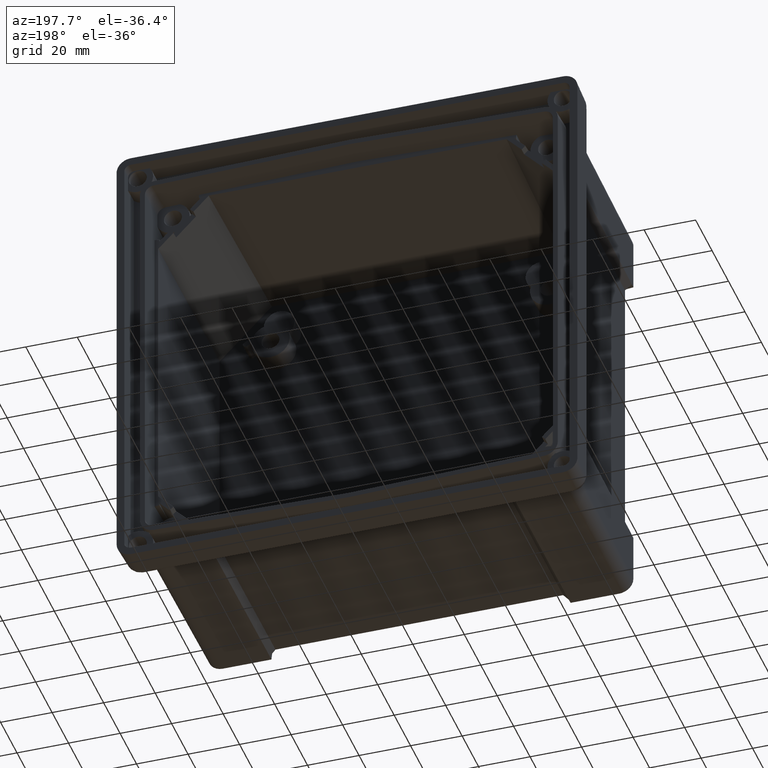
[diagram: clean part render]
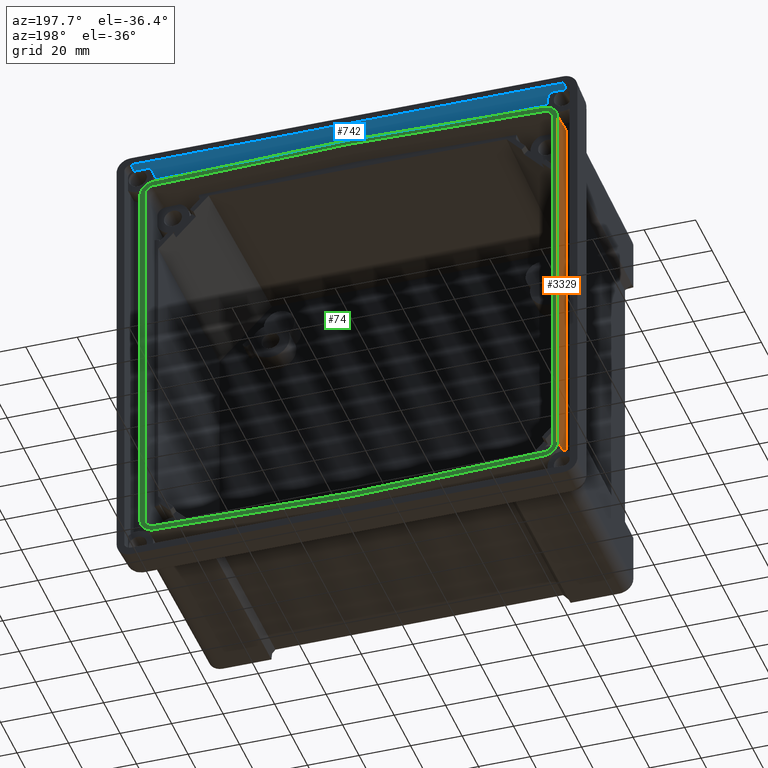
[diagram: same view with three faces highlighted in distinct colors, each labeled with its STEP entity id]
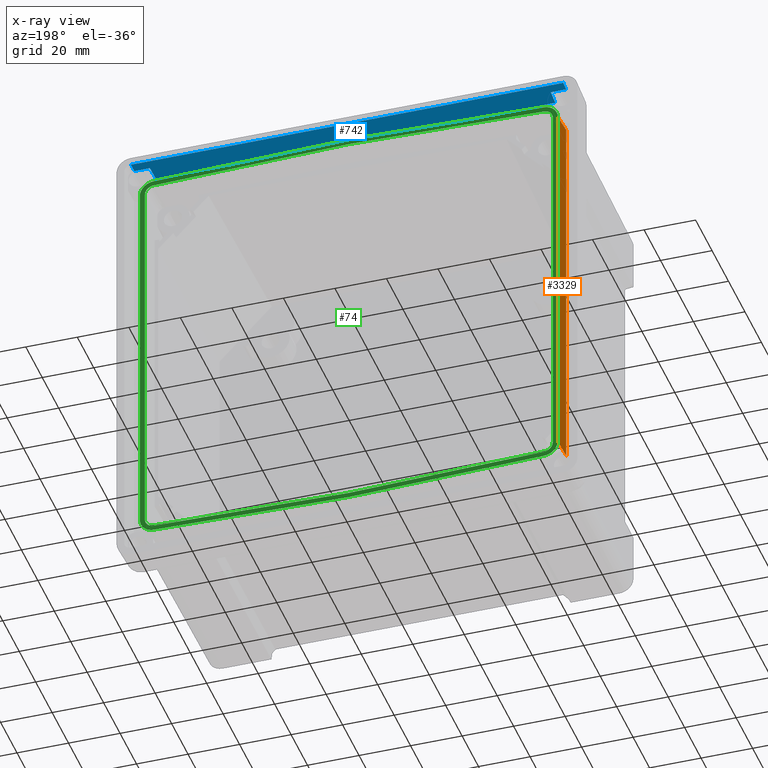
[diagram: x-ray of the same camera — body ghosted, the three highlighted faces saturated]
A machine part, auxiliary view with three faces highlighted in distinct colors.
The next image is the same camera in x-ray (body ghosted, the three faces saturated) — at least one of them is partly hidden behind the body in this view.
Their STEP definitions:

[orange] entity #3329 — the highlighted planar face has unit normal (-0.9994, 0.0349, -0).
#242 = DIRECTION ( 'NONE',  ( 8.896017825522089300E-017, 0.0000000000000000000, -1.000000000000000000 ) ) ;
#440 = LINE ( 'NONE', #12625, #4197 ) ;
#571 = ORIENTED_EDGE ( 'NONE', *, *, #1816, .T. ) ;
#993 = DIRECTION ( 'NONE',  ( -8.830472419256287500E-017, 1.876974855359052400E-017, 1.000000000000000000 ) ) ;
#1524 = EDGE_CURVE ( 'NONE', #4217, #10422, #3772, .T. ) ;
#1570 = DIRECTION ( 'NONE',  ( 0.03487934512674303900, 0.9988137613916394700, -0.03397795370846534700 ) ) ;
#1625 = CARTESIAN_POINT ( 'NONE',  ( -81.10051121326883100, -2.200000000000000200, 82.14410265747622500 ) ) ;
#1816 = EDGE_CURVE ( 'NONE', #2580, #2204, #3033, .T. ) ;
#2204 = VERTEX_POINT ( 'NONE', #4997 ) ;
#2372 = CARTESIAN_POINT ( 'NONE',  ( -81.42553552676963600, -11.50747856451472600, 82.14410265747622500 ) ) ;
#2580 = VERTEX_POINT ( 'NONE', #4903 ) ;
#2984 = CARTESIAN_POINT ( 'NONE',  ( -81.13739601074755100, -3.256242402889716100, 74.60243174988704600 ) ) ;
#3033 = LINE ( 'NONE', #1625, #8103 ) ;
#3288 = FACE_OUTER_BOUND ( 'NONE', #9662, .T. ) ;
#3329 = ADVANCED_FACE ( 'NONE', ( #3288 ), #12629, .T. ) ;
#3772 = LINE ( 'NONE', #2372, #7730 ) ;
#4197 = VECTOR ( 'NONE', #11251, 1000.000000000000100 ) ;
#4217 = VERTEX_POINT ( 'NONE', #6468 ) ;
#4339 = AXIS2_PLACEMENT_3D ( 'NONE', #11254, #9855, #8469 ) ;
#4359 = LINE ( 'NONE', #2984, #7988 ) ;
#4903 = CARTESIAN_POINT ( 'NONE',  ( -81.10051121326883100, -2.200000000000000200, 74.56650017099060800 ) ) ;
#4997 = CARTESIAN_POINT ( 'NONE',  ( -81.10051121326881700, -2.200000000000000200, -74.56650017099055100 ) ) ;
#5450 = EDGE_CURVE ( 'NONE', #2204, #4217, #440, .T. ) ;
#6468 = CARTESIAN_POINT ( 'NONE',  ( -81.42553552676962200, -11.50747856451472700, -74.88312483920401500 ) ) ;
#7232 = EDGE_CURVE ( 'NONE', #10422, #2580, #4359, .T. ) ;
#7568 = ORIENTED_EDGE ( 'NONE', *, *, #5450, .T. ) ;
#7730 = VECTOR ( 'NONE', #993, 1000.000000000000000 ) ;
#7988 = VECTOR ( 'NONE', #1570, 1000.000000000000100 ) ;
#8103 = VECTOR ( 'NONE', #242, 1000.000000000000000 ) ;
#8469 = DIRECTION ( 'NONE',  ( -0.03489949670250104600, -0.9993908270190956500, 0.0000000000000000000 ) ) ;
#9662 = EDGE_LOOP ( 'NONE', ( #571, #7568, #11582, #11304 ) ) ;
#9855 = DIRECTION ( 'NONE',  ( -0.9993908270190957600, 0.03489949670250105200, -8.890598611825138600E-017 ) ) ;
#10422 = VERTEX_POINT ( 'NONE', #11853 ) ;
#11251 = DIRECTION ( 'NONE',  ( -0.03487934512674303900, -0.9988137613916394700, -0.03397795370846535400 ) ) ;
#11254 = CARTESIAN_POINT ( 'NONE',  ( -81.12844782886223500, -3.000000000000000000, 82.14410265747622500 ) ) ;
#11304 = ORIENTED_EDGE ( 'NONE', *, *, #7232, .T. ) ;
#11582 = ORIENTED_EDGE ( 'NONE', *, *, #1524, .T. ) ;
#11853 = CARTESIAN_POINT ( 'NONE',  ( -81.42553552676963600, -11.50747856451472600, 74.88312483920400100 ) ) ;
#12625 = CARTESIAN_POINT ( 'NONE',  ( -80.94269333138386500, 2.319312838230924300, -74.41276079699811400 ) ) ;
#12629 = PLANE ( 'NONE',  #4339 ) ;

[blue] entity #742 — the highlighted planar face has unit normal (0, -0.0349, 0.9994).
#10 = VECTOR ( 'NONE', #6622, 1000.000000000000000 ) ;
#122 = EDGE_LOOP ( 'NONE', ( #4899, #6004, #10915, #4520, #3352, #6999, #4445, #3478 ) ) ;
#394 = EDGE_CURVE ( 'NONE', #11939, #8159, #5866, .T. ) ;
#742 = ADVANCED_FACE ( 'NONE', ( #11915 ), #13426, .F. ) ;
#762 = CARTESIAN_POINT ( 'NONE',  ( -77.52785847013065300, -10.52288663728130500, 87.55767635318143500 ) ) ;
#829 = VECTOR ( 'NONE', #2116, 1000.000000000000000 ) ;
#872 = DIRECTION ( 'NONE',  ( 1.000000000000000000, -0.0000000000000000000, -0.0000000000000000000 ) ) ;
#1884 = EDGE_CURVE ( 'NONE', #7012, #8159, #4900, .T. ) ;
#2116 = DIRECTION ( 'NONE',  ( 1.000000000000000000, 0.0000000000000000000, 0.0000000000000000000 ) ) ;
#2249 = CARTESIAN_POINT ( 'NONE',  ( -89.42697228472621900, -4.000000000000000000, 87.78546057386273600 ) ) ;
#2316 = CARTESIAN_POINT ( 'NONE',  ( -77.52785847013065300, -10.52288663728130500, 87.55767635318143500 ) ) ;
#2332 = LINE ( 'NONE', #7573, #11004 ) ;
#2592 = VECTOR ( 'NONE', #872, 1000.000000000000000 ) ;
#2594 = VERTEX_POINT ( 'NONE', #8096 ) ;
#2943 = VECTOR ( 'NONE', #7417, 1000.000000000000100 ) ;
#3232 = CARTESIAN_POINT ( 'NONE',  ( -83.92666658428200300, 0.0000000000000000000, 87.92514365182970000 ) ) ;
#3303 = EDGE_CURVE ( 'NONE', #10736, #11427, #10201, .T. ) ;
#3352 = ORIENTED_EDGE ( 'NONE', *, *, #8765, .F. ) ;
#3478 = ORIENTED_EDGE ( 'NONE', *, *, #7141, .T. ) ;
#3503 = CARTESIAN_POINT ( 'NONE',  ( -89.42697228472621900, -10.52288663728130500, 87.55767635318143500 ) ) ;
#3651 = LINE ( 'NONE', #2249, #2592 ) ;
#3688 = CARTESIAN_POINT ( 'NONE',  ( 77.84486431521797600, -4.000000000000001800, 87.78546057386273600 ) ) ;
#4320 = DIRECTION ( 'NONE',  ( 1.000000000000000000, -0.0000000000000000000, -0.0000000000000000000 ) ) ;
#4445 = ORIENTED_EDGE ( 'NONE', *, *, #1884, .F. ) ;
#4520 = ORIENTED_EDGE ( 'NONE', *, *, #3303, .F. ) ;
#4653 = AXIS2_PLACEMENT_3D ( 'NONE', #13087, #11688, #10326 ) ;
#4678 = CARTESIAN_POINT ( 'NONE',  ( 77.66854690946770700, -10.52288663728130500, 87.55767635318143500 ) ) ;
#4899 = ORIENTED_EDGE ( 'NONE', *, *, #8221, .F. ) ;
#4900 = LINE ( 'NONE', #3503, #829 ) ;
#5705 = CARTESIAN_POINT ( 'NONE',  ( -89.42697228472621900, -4.000000000000000000, 87.78546057386273600 ) ) ;
#5866 =( BOUNDED_CURVE ( )  B_SPLINE_CURVE ( 3, ( #8851, #7468, #6084, #4678 ),
 .UNSPECIFIED., .F., .F. ) 
 B_SPLINE_CURVE_WITH_KNOTS ( ( 4, 4 ),
 ( 0.8880706524711692300, 0.9360837931004155600 ),
 .UNSPECIFIED. ) 
 CURVE ( )  GEOMETRIC_REPRESENTATION_ITEM ( )  RATIONAL_B_SPLINE_CURVE ( ( 1.000000000000000000, 0.9998079040864952200, 0.9998079040864952200, 1.000000000000000000 ) ) 
 REPRESENTATION_ITEM ( '' )  );
#6004 = ORIENTED_EDGE ( 'NONE', *, *, #8872, .F. ) ;
#6084 = CARTESIAN_POINT ( 'NONE',  ( 77.72549078425041100, -8.308392469827444100, 87.63500819354389600 ) ) ;
#6199 = DIRECTION ( 'NONE',  ( 0.03487826274237469700, -0.9987827659587182900, -0.03487826274237469700 ) ) ;
#6622 = DIRECTION ( 'NONE',  ( -1.000000000000000000, -0.0000000000000000000, -0.0000000000000000000 ) ) ;
#6999 = ORIENTED_EDGE ( 'NONE', *, *, #394, .T. ) ;
#7012 = VERTEX_POINT ( 'NONE', #2316 ) ;
#7111 = LINE ( 'NONE', #5705, #8435 ) ;
#7141 = EDGE_CURVE ( 'NONE', #7012, #2594, #12546, .T. ) ;
#7417 = DIRECTION ( 'NONE',  ( 0.03487826274237469700, 0.9987827659587182900, 0.03487826274237469700 ) ) ;
#7468 = CARTESIAN_POINT ( 'NONE',  ( 77.78427454495404400, -6.133679170529106300, 87.71095085537936600 ) ) ;
#7573 = CARTESIAN_POINT ( 'NONE',  ( -83.71578528385467200, -6.038850331667778600, 87.71426235140236800 ) ) ;
#8009 = CARTESIAN_POINT ( 'NONE',  ( -89.42697228472621900, 0.0000000000000000000, 87.92514365182971400 ) ) ;
#8096 = CARTESIAN_POINT ( 'NONE',  ( -77.84486431521797600, -4.000000000000001800, 87.78546057386273600 ) ) ;
#8159 = VERTEX_POINT ( 'NONE', #8737 ) ;
#8221 = EDGE_CURVE ( 'NONE', #10423, #2594, #7111, .T. ) ;
#8435 = VECTOR ( 'NONE', #4320, 1000.000000000000000 ) ;
#8737 = CARTESIAN_POINT ( 'NONE',  ( 77.66854690946770700, -10.52288663728130500, 87.55767635318143500 ) ) ;
#8765 = EDGE_CURVE ( 'NONE', #11939, #10736, #3651, .T. ) ;
#8797 = CARTESIAN_POINT ( 'NONE',  ( 83.71943476349044000, -5.934342908466788000, 87.71791183103816500 ) ) ;
#8851 = CARTESIAN_POINT ( 'NONE',  ( 77.84486431521797600, -4.000000000000001800, 87.78546057386273600 ) ) ;
#8872 = EDGE_CURVE ( 'NONE', #10971, #10423, #2332, .T. ) ;
#9412 = CARTESIAN_POINT ( 'NONE',  ( 83.78698350631501100, -4.000000000000000000, 87.78546057386273600 ) ) ;
#10183 = CARTESIAN_POINT ( 'NONE',  ( -77.84486431521797600, -4.000000000000001800, 87.78546057386273600 ) ) ;
#10201 = LINE ( 'NONE', #8797, #2943 ) ;
#10326 = DIRECTION ( 'NONE',  ( 0.0000000000000000000, -0.9993908270190956500, -0.03489949670250104600 ) ) ;
#10339 = CARTESIAN_POINT ( 'NONE',  ( 83.92666658428200300, 0.0000000000000000000, 87.92514365182972800 ) ) ;
#10423 = VERTEX_POINT ( 'NONE', #10481 ) ;
#10481 = CARTESIAN_POINT ( 'NONE',  ( -83.78698350631502500, -4.000000000000000000, 87.78546057386272100 ) ) ;
#10736 = VERTEX_POINT ( 'NONE', #9412 ) ;
#10747 = EDGE_CURVE ( 'NONE', #11427, #10971, #10785, .T. ) ;
#10785 = LINE ( 'NONE', #8009, #10 ) ;
#10915 = ORIENTED_EDGE ( 'NONE', *, *, #10747, .F. ) ;
#10971 = VERTEX_POINT ( 'NONE', #3232 ) ;
#11004 = VECTOR ( 'NONE', #6199, 1000.000000000000100 ) ;
#11427 = VERTEX_POINT ( 'NONE', #10339 ) ;
#11557 = CARTESIAN_POINT ( 'NONE',  ( -77.73785555488125000, -6.102553456151002600, 87.71203778927639400 ) ) ;
#11688 = DIRECTION ( 'NONE',  ( 0.0000000000000000000, -0.03489949670250105200, 0.9993908270190957600 ) ) ;
#11915 = FACE_OUTER_BOUND ( 'NONE', #122, .T. ) ;
#11939 = VERTEX_POINT ( 'NONE', #3688 ) ;
#12546 =( BOUNDED_CURVE ( )  B_SPLINE_CURVE ( 3, ( #762, #12942, #11557, #10183 ),
 .UNSPECIFIED., .F., .F. ) 
 B_SPLINE_CURVE_WITH_KNOTS ( ( 4, 4 ),
 ( 2.564415316060180600, 2.605394574925203900 ),
 .UNSPECIFIED. ) 
 CURVE ( )  GEOMETRIC_REPRESENTATION_ITEM ( )  RATIONAL_B_SPLINE_CURVE ( ( 1.000000000000000000, 0.9998600632577530100, 0.9998600632577530100, 1.000000000000000000 ) ) 
 REPRESENTATION_ITEM ( '' )  );
#12942 = CARTESIAN_POINT ( 'NONE',  ( -77.63217215086085300, -8.277153308330316200, 87.63609908910166300 ) ) ;
#13087 = CARTESIAN_POINT ( 'NONE',  ( -89.42697228472621900, 0.1046984901075031500, 87.92879980366889500 ) ) ;
#13426 = PLANE ( 'NONE',  #4653 ) ;

[green] entity #74 — the highlighted planar face has unit normal (0, 1, 0).
#74 = ADVANCED_FACE ( 'NONE', ( #10779, #3683 ), #7956, .T. ) ;
#242 = DIRECTION ( 'NONE',  ( 8.896017825522089300E-017, 0.0000000000000000000, -1.000000000000000000 ) ) ;
#270 = EDGE_CURVE ( 'NONE', #11972, #3556, #4939, .T. ) ;
#288 = VERTEX_POINT ( 'NONE', #756 ) ;
#509 = CARTESIAN_POINT ( 'NONE',  ( 0.0007312953422992004600, -2.200000000000000200, -80.09997837115109600 ) ) ;
#608 = CARTESIAN_POINT ( 'NONE',  ( -1.030584521700440600E-012, -2.200000000000000200, -82.04479072166439800 ) ) ;
#722 = ORIENTED_EDGE ( 'NONE', *, *, #8085, .T. ) ;
#756 = CARTESIAN_POINT ( 'NONE',  ( -75.74774717576413300, -2.200000000000000200, 80.06126615507719200 ) ) ;
#879 = CARTESIAN_POINT ( 'NONE',  ( 79.15638444445563900, -2.200000000000000200, 78.00000000000002800 ) ) ;
#934 = CARTESIAN_POINT ( 'NONE',  ( -79.15638444445562500, -2.200000000000000200, -74.61974260296199200 ) ) ;
#957 = CARTESIAN_POINT ( 'NONE',  ( 79.15638444445563900, -2.200000000000000200, 74.61974260296200600 ) ) ;
#1006 = CARTESIAN_POINT ( 'NONE',  ( 0.0007312953422795793200, -2.200000000000000200, 80.09997837115109600 ) ) ;
#1101 = CARTESIAN_POINT ( 'NONE',  ( -79.07162764246172100, -2.200000000000000200, 79.97422728187089500 ) ) ;
#1168 = EDGE_LOOP ( 'NONE', ( #2226, #13218, #7873, #1909, #4895, #1324, #722, #8537, #7736, #11148 ) ) ;
#1324 = ORIENTED_EDGE ( 'NONE', *, *, #11343, .F. ) ;
#1326 = LINE ( 'NONE', #1006, #3938 ) ;
#1625 = CARTESIAN_POINT ( 'NONE',  ( -81.10051121326883100, -2.200000000000000200, 82.14410265747622500 ) ) ;
#1695 = VECTOR ( 'NONE', #2279, 1000.000000000000100 ) ;
#1738 = CARTESIAN_POINT ( 'NONE',  ( 75.75008005695265500, -2.200000000000000200, 78.11641186556258300 ) ) ;
#1772 = CARTESIAN_POINT ( 'NONE',  ( 75.75008005695265500, -2.200000000000000200, 78.11641186556258300 ) ) ;
#1816 = EDGE_CURVE ( 'NONE', #2580, #2204, #3033, .T. ) ;
#1909 = ORIENTED_EDGE ( 'NONE', *, *, #2484, .T. ) ;
#2095 = CARTESIAN_POINT ( 'NONE',  ( -75.75008005695264000, -2.200000000000000200, -78.11641186556256900 ) ) ;
#2146 = DIRECTION ( 'NONE',  ( 0.9996573249755572600, 0.0000000000000000000, -0.02617694830787347500 ) ) ;
#2168 =( BOUNDED_CURVE ( )  B_SPLINE_CURVE ( 3, ( #13498, #12095, #10704, #9330 ),
 .UNSPECIFIED., .F., .F. ) 
 B_SPLINE_CURVE_WITH_KNOTS ( ( 4, 4 ),
 ( 5.511470371821729100, 7.054900242537439000 ),
 .UNSPECIFIED. ) 
 CURVE ( )  GEOMETRIC_REPRESENTATION_ITEM ( )  RATIONAL_B_SPLINE_CURVE ( ( 1.000000000000000000, 0.8111438583819922100, 0.8111438583819922100, 1.000000000000000000 ) ) 
 REPRESENTATION_ITEM ( '' )  );
#2204 = VERTEX_POINT ( 'NONE', #4997 ) ;
#2226 = ORIENTED_EDGE ( 'NONE', *, *, #270, .F. ) ;
#2258 = LINE ( 'NONE', #879, #8352 ) ;
#2279 = DIRECTION ( 'NONE',  ( 0.9996573249755572600, -0.0000000000000000000, 0.02617694830787365200 ) ) ;
#2484 = EDGE_CURVE ( 'NONE', #2580, #288, #9489, .T. ) ;
#2487 = LINE ( 'NONE', #1101, #7879 ) ;
#2500 = VECTOR ( 'NONE', #3291, 1000.000000000000100 ) ;
#2580 = VERTEX_POINT ( 'NONE', #4903 ) ;
#2714 = CARTESIAN_POINT ( 'NONE',  ( -79.15638444445563900, -2.200000000000000200, 74.61974260296194900 ) ) ;
#2836 = EDGE_CURVE ( 'NONE', #10615, #6603, #6428, .T. ) ;
#2996 = DIRECTION ( 'NONE',  ( 8.896017825522089300E-017, -0.0000000000000000000, -1.000000000000000000 ) ) ;
#3008 = VERTEX_POINT ( 'NONE', #957 ) ;
#3033 = LINE ( 'NONE', #1625, #8103 ) ;
#3165 = CARTESIAN_POINT ( 'NONE',  ( 77.75658984069792700, -2.200000000000000200, 78.06386955773760400 ) ) ;
#3291 = DIRECTION ( 'NONE',  ( -0.9996573249755572600, 0.0000000000000000000, -0.02617694830787382600 ) ) ;
#3294 = DIRECTION ( 'NONE',  ( -0.9996573249755572600, 0.0000000000000000000, 0.02617694830787330500 ) ) ;
#3442 = CARTESIAN_POINT ( 'NONE',  ( 79.15638444445565400, -2.200000000000000200, -74.61974260296193500 ) ) ;
#3476 = CARTESIAN_POINT ( 'NONE',  ( -77.75658984069789900, -2.200000000000000200, -78.06386955773760400 ) ) ;
#3540 = CARTESIAN_POINT ( 'NONE',  ( -83.37071780475932300, -2.200000000000000200, -79.86165164406215000 ) ) ;
#3556 = VERTEX_POINT ( 'NONE', #608 ) ;
#3650 = VERTEX_POINT ( 'NONE', #12544 ) ;
#3677 = CARTESIAN_POINT ( 'NONE',  ( -74.77773506529111100, -2.200000000000000200, -84.00291462720557000 ) ) ;
#3683 = FACE_OUTER_BOUND ( 'NONE', #1168, .T. ) ;
#3795 = DIRECTION ( 'NONE',  ( 0.0000000000000000000, -0.0000000000000000000, 1.000000000000000000 ) ) ;
#3906 = EDGE_CURVE ( 'NONE', #7478, #7981, #6083, .T. ) ;
#3938 = VECTOR ( 'NONE', #13185, 1000.000000000000100 ) ;
#4125 = CARTESIAN_POINT ( 'NONE',  ( -79.15638444445565400, -2.200000000000000600, 76.62694020319395300 ) ) ;
#4298 = CARTESIAN_POINT ( 'NONE',  ( -81.10051121326881700, -2.200000000000000200, -74.56650017099055100 ) ) ;
#4372 = CARTESIAN_POINT ( 'NONE',  ( -79.15638444445562500, -2.200000000000000200, -78.00000000000001400 ) ) ;
#4464 = CARTESIAN_POINT ( 'NONE',  ( -75.75008005695264000, -2.200000000000000200, -78.11641186556256900 ) ) ;
#4543 = CARTESIAN_POINT ( 'NONE',  ( 79.15638444445563900, -2.200000000000000200, 76.62694020319399600 ) ) ;
#4677 = CARTESIAN_POINT ( 'NONE',  ( -79.12917912420451200, -2.200000000000000200, 78.02792704241295500 ) ) ;
#4680 = CARTESIAN_POINT ( 'NONE',  ( -79.07682522758875600, -2.200000000000000200, 84.11549026501435800 ) ) ;
#4754 = DIRECTION ( 'NONE',  ( 0.9996573249755572600, -0.0000000000000000000, -0.02617694830787347500 ) ) ;
#4837 = CARTESIAN_POINT ( 'NONE',  ( 79.15638444445566800, -2.200000000000000600, -76.62694020319393900 ) ) ;
#4873 = CARTESIAN_POINT ( 'NONE',  ( -79.15638444445559700, -2.200000000000000200, -76.62694020319398200 ) ) ;
#4895 = ORIENTED_EDGE ( 'NONE', *, *, #6165, .F. ) ;
#4903 = CARTESIAN_POINT ( 'NONE',  ( -81.10051121326883100, -2.200000000000000200, 74.56650017099060800 ) ) ;
#4939 = LINE ( 'NONE', #3540, #12093 ) ;
#4997 = CARTESIAN_POINT ( 'NONE',  ( -81.10051121326881700, -2.200000000000000200, -74.56650017099055100 ) ) ;
#5051 = CARTESIAN_POINT ( 'NONE',  ( 75.74774717576413300, -2.200000000000000200, -80.06126615507717800 ) ) ;
#5079 = LINE ( 'NONE', #3677, #1695 ) ;
#5104 =( BOUNDED_CURVE ( )  B_SPLINE_CURVE ( 3, ( #8470, #7088, #5685, #4298 ),
 .UNSPECIFIED., .F., .F. ) 
 B_SPLINE_CURVE_WITH_KNOTS ( ( 4, 4 ),
 ( 5.511470371821733500, 7.054900242537451400 ),
 .UNSPECIFIED. ) 
 CURVE ( )  GEOMETRIC_REPRESENTATION_ITEM ( )  RATIONAL_B_SPLINE_CURVE ( ( 1.000000000000000000, 0.8111438583819904300, 0.8111438583819904300, 1.000000000000000000 ) ) 
 REPRESENTATION_ITEM ( '' )  );
#5191 = DIRECTION ( 'NONE',  ( 0.0000000000000000000, 1.000000000000000000, 0.0000000000000000000 ) ) ;
#5208 = EDGE_CURVE ( 'NONE', #11107, #8890, #6749, .T. ) ;
#5497 = CARTESIAN_POINT ( 'NONE',  ( -77.75658984069792700, -2.200000000000000600, 78.06386955773757600 ) ) ;
#5498 =( BOUNDED_CURVE ( )  B_SPLINE_CURVE ( 3, ( #6895, #5497, #4125, #2714 ),
 .UNSPECIFIED., .F., .F. ) 
 B_SPLINE_CURVE_WITH_KNOTS ( ( 4, 4 ),
 ( 5.511470371821736200, 7.054900242537443400 ),
 .UNSPECIFIED. ) 
 CURVE ( )  GEOMETRIC_REPRESENTATION_ITEM ( )  RATIONAL_B_SPLINE_CURVE ( ( 1.000000000000000000, 0.8111438583819927700, 0.8111438583819927700, 1.000000000000000000 ) ) 
 REPRESENTATION_ITEM ( '' )  );
#5513 = ORIENTED_EDGE ( 'NONE', *, *, #10350, .T. ) ;
#5578 = EDGE_CURVE ( 'NONE', #10582, #11107, #5760, .T. ) ;
#5685 = CARTESIAN_POINT ( 'NONE',  ( -81.10051121326890200, -2.200000000000000200, -77.72066782849799400 ) ) ;
#5760 = LINE ( 'NONE', #4372, #11540 ) ;
#5941 = CARTESIAN_POINT ( 'NONE',  ( 79.15638444445563900, -2.200000000000000200, 74.61974260296200600 ) ) ;
#5953 = CARTESIAN_POINT ( 'NONE',  ( 75.74774717576413300, -2.200000000000000200, -80.06126615507717800 ) ) ;
#6083 = LINE ( 'NONE', #4677, #2500 ) ;
#6085 = LINE ( 'NONE', #4680, #9719 ) ;
#6160 = CARTESIAN_POINT ( 'NONE',  ( -79.12917912420449800, -2.200000000000000200, -78.02792704241298300 ) ) ;
#6165 = EDGE_CURVE ( 'NONE', #11496, #288, #2487, .T. ) ;
#6171 = VERTEX_POINT ( 'NONE', #7722 ) ;
#6242 = CARTESIAN_POINT ( 'NONE',  ( 77.75658984069794100, -2.200000000000000600, -78.06386955773756100 ) ) ;
#6244 = ORIENTED_EDGE ( 'NONE', *, *, #6806, .T. ) ;
#6245 = VECTOR ( 'NONE', #12691, 1000.000000000000100 ) ;
#6276 = CARTESIAN_POINT ( 'NONE',  ( -79.15638444445562500, -2.200000000000000200, -74.61974260296199200 ) ) ;
#6428 =( BOUNDED_CURVE ( )  B_SPLINE_CURVE ( 3, ( #10127, #8727, #7352, #5953 ),
 .UNSPECIFIED., .F., .F. ) 
 B_SPLINE_CURVE_WITH_KNOTS ( ( 4, 4 ),
 ( 5.511470371821726400, 7.054900242537443400 ),
 .UNSPECIFIED. ) 
 CURVE ( )  GEOMETRIC_REPRESENTATION_ITEM ( )  RATIONAL_B_SPLINE_CURVE ( ( 1.000000000000000000, 0.8111438583819905500, 0.8111438583819905500, 1.000000000000000000 ) ) 
 REPRESENTATION_ITEM ( '' )  );
#6574 = CARTESIAN_POINT ( 'NONE',  ( -81.12844782886223500, -2.200000000000000200, 84.19716008559632300 ) ) ;
#6586 = ORIENTED_EDGE ( 'NONE', *, *, #5578, .T. ) ;
#6587 = VERTEX_POINT ( 'NONE', #13053 ) ;
#6603 = VERTEX_POINT ( 'NONE', #5051 ) ;
#6731 = EDGE_LOOP ( 'NONE', ( #10513, #13040, #6586, #10450, #13130, #10453, #5513, #10598, #6244, #13061 ) ) ;
#6749 =( BOUNDED_CURVE ( )  B_SPLINE_CURVE ( 3, ( #6276, #4873, #3476, #2095 ),
 .UNSPECIFIED., .F., .F. ) 
 B_SPLINE_CURVE_WITH_KNOTS ( ( 4, 4 ),
 ( 5.511470371821732600, 7.054900242537431900 ),
 .UNSPECIFIED. ) 
 CURVE ( )  GEOMETRIC_REPRESENTATION_ITEM ( )  RATIONAL_B_SPLINE_CURVE ( ( 1.000000000000000000, 0.8111438583819945400, 0.8111438583819945400, 1.000000000000000000 ) ) 
 REPRESENTATION_ITEM ( '' )  );
#6806 = EDGE_CURVE ( 'NONE', #3008, #11653, #7307, .T. ) ;
#6895 = CARTESIAN_POINT ( 'NONE',  ( -75.75008005695265500, -2.200000000000000200, 78.11641186556254000 ) ) ;
#7088 = CARTESIAN_POINT ( 'NONE',  ( -78.90083397879243400, -2.200000000000000200, -79.97869967135230200 ) ) ;
#7219 = CARTESIAN_POINT ( 'NONE',  ( -75.74774717576411800, -2.200000000000000200, -80.06126615507724900 ) ) ;
#7226 = EDGE_CURVE ( 'NONE', #7572, #6171, #8855, .T. ) ;
#7307 =( BOUNDED_CURVE ( )  B_SPLINE_CURVE ( 3, ( #5941, #4543, #3165, #1772 ),
 .UNSPECIFIED., .F., .F. ) 
 B_SPLINE_CURVE_WITH_KNOTS ( ( 4, 4 ),
 ( 5.511470371821732600, 7.054900242537436300 ),
 .UNSPECIFIED. ) 
 CURVE ( )  GEOMETRIC_REPRESENTATION_ITEM ( )  RATIONAL_B_SPLINE_CURVE ( ( 1.000000000000000000, 0.8111438583819936500, 0.8111438583819936500, 1.000000000000000000 ) ) 
 REPRESENTATION_ITEM ( '' )  );
#7335 = DIRECTION ( 'NONE',  ( -8.896017825522086900E-017, 0.0000000000000000000, 1.000000000000000000 ) ) ;
#7352 = CARTESIAN_POINT ( 'NONE',  ( 78.90083397879244800, -2.200000000000000200, -79.97869967135227400 ) ) ;
#7478 = VERTEX_POINT ( 'NONE', #10420 ) ;
#7538 = LINE ( 'NONE', #6160, #12714 ) ;
#7572 = VERTEX_POINT ( 'NONE', #9430 ) ;
#7613 = CARTESIAN_POINT ( 'NONE',  ( 75.75008005695266900, -2.200000000000000200, -78.11641186556255400 ) ) ;
#7722 = CARTESIAN_POINT ( 'NONE',  ( 75.75008005695266900, -2.200000000000000200, -78.11641186556255400 ) ) ;
#7736 = ORIENTED_EDGE ( 'NONE', *, *, #2836, .T. ) ;
#7836 = EDGE_CURVE ( 'NONE', #8890, #7572, #7538, .T. ) ;
#7873 = ORIENTED_EDGE ( 'NONE', *, *, #1816, .F. ) ;
#7879 = VECTOR ( 'NONE', #13292, 1000.000000000000100 ) ;
#7956 = PLANE ( 'NONE',  #12352 ) ;
#7981 = VERTEX_POINT ( 'NONE', #8186 ) ;
#8013 = EDGE_CURVE ( 'NONE', #3556, #6603, #5079, .T. ) ;
#8085 = EDGE_CURVE ( 'NONE', #6587, #3650, #2168, .T. ) ;
#8103 = VECTOR ( 'NONE', #242, 1000.000000000000000 ) ;
#8186 = CARTESIAN_POINT ( 'NONE',  ( -75.75008005695265500, -2.200000000000000200, 78.11641186556254000 ) ) ;
#8292 = CARTESIAN_POINT ( 'NONE',  ( 2.627841622125360700E-015, -2.200000000000000200, 82.04479072166441300 ) ) ;
#8352 = VECTOR ( 'NONE', #13056, 1000.000000000000000 ) ;
#8470 = CARTESIAN_POINT ( 'NONE',  ( -75.74774717576411800, -2.200000000000000200, -80.06126615507724900 ) ) ;
#8537 = ORIENTED_EDGE ( 'NONE', *, *, #10884, .F. ) ;
#8660 = CARTESIAN_POINT ( 'NONE',  ( -75.74774717576413300, -2.200000000000000200, 80.06126615507719200 ) ) ;
#8711 = CARTESIAN_POINT ( 'NONE',  ( 81.10051121326881700, -2.200000000000000200, 82.14410265747623900 ) ) ;
#8727 = CARTESIAN_POINT ( 'NONE',  ( 81.10051121326888800, -2.200000000000000200, -77.72066782849796600 ) ) ;
#8735 = VERTEX_POINT ( 'NONE', #10603 ) ;
#8855 = LINE ( 'NONE', #509, #6245 ) ;
#8890 = VERTEX_POINT ( 'NONE', #4464 ) ;
#9108 = VECTOR ( 'NONE', #7335, 1000.000000000000000 ) ;
#9330 = CARTESIAN_POINT ( 'NONE',  ( 81.10051121326881700, -2.200000000000000200, 74.56650017099063600 ) ) ;
#9430 = CARTESIAN_POINT ( 'NONE',  ( 1.789033975067355200E-014, -2.200000000000000200, -80.09999752079356500 ) ) ;
#9489 =( BOUNDED_CURVE ( )  B_SPLINE_CURVE ( 3, ( #12832, #11453, #10058, #8660 ),
 .UNSPECIFIED., .F., .F. ) 
 B_SPLINE_CURVE_WITH_KNOTS ( ( 4, 4 ),
 ( 5.511470371821737000, 7.054900242537438100 ),
 .UNSPECIFIED. ) 
 CURVE ( )  GEOMETRIC_REPRESENTATION_ITEM ( )  RATIONAL_B_SPLINE_CURVE ( ( 1.000000000000000000, 0.8111438583819943200, 0.8111438583819943200, 1.000000000000000000 ) ) 
 REPRESENTATION_ITEM ( '' )  );
#9705 =( BOUNDED_CURVE ( )  B_SPLINE_CURVE ( 3, ( #7613, #6242, #4837, #3442 ),
 .UNSPECIFIED., .F., .F. ) 
 B_SPLINE_CURVE_WITH_KNOTS ( ( 4, 4 ),
 ( 5.511470371821736200, 7.054900242537443400 ),
 .UNSPECIFIED. ) 
 CURVE ( )  GEOMETRIC_REPRESENTATION_ITEM ( )  RATIONAL_B_SPLINE_CURVE ( ( 1.000000000000000000, 0.8111438583819927700, 0.8111438583819927700, 1.000000000000000000 ) ) 
 REPRESENTATION_ITEM ( '' )  );
#9719 = VECTOR ( 'NONE', #3294, 1000.000000000000100 ) ;
#9893 = CARTESIAN_POINT ( 'NONE',  ( 81.10051121326883100, -2.200000000000000200, -74.56650017099053700 ) ) ;
#10058 = CARTESIAN_POINT ( 'NONE',  ( -78.90083397879239200, -2.200000000000000200, 79.97869967135228800 ) ) ;
#10104 = EDGE_CURVE ( 'NONE', #7981, #10582, #5498, .T. ) ;
#10109 = LINE ( 'NONE', #8711, #9108 ) ;
#10125 = EDGE_CURVE ( 'NONE', #11653, #7478, #1326, .T. ) ;
#10127 = CARTESIAN_POINT ( 'NONE',  ( 81.10051121326883100, -2.200000000000000200, -74.56650017099053700 ) ) ;
#10350 = EDGE_CURVE ( 'NONE', #6171, #8735, #9705, .T. ) ;
#10420 = CARTESIAN_POINT ( 'NONE',  ( -8.131792446285359600E-015, -2.200000000000000200, 80.09999752079356500 ) ) ;
#10450 = ORIENTED_EDGE ( 'NONE', *, *, #5208, .T. ) ;
#10453 = ORIENTED_EDGE ( 'NONE', *, *, #7226, .T. ) ;
#10513 = ORIENTED_EDGE ( 'NONE', *, *, #3906, .T. ) ;
#10582 = VERTEX_POINT ( 'NONE', #11603 ) ;
#10598 = ORIENTED_EDGE ( 'NONE', *, *, #13177, .T. ) ;
#10603 = CARTESIAN_POINT ( 'NONE',  ( 79.15638444445565400, -2.200000000000000200, -74.61974260296193500 ) ) ;
#10615 = VERTEX_POINT ( 'NONE', #9893 ) ;
#10704 = CARTESIAN_POINT ( 'NONE',  ( 81.10051121326881700, -2.200000000000000600, 77.72066782849806500 ) ) ;
#10779 = FACE_BOUND ( 'NONE', #6731, .T. ) ;
#10884 = EDGE_CURVE ( 'NONE', #10615, #3650, #10109, .T. ) ;
#11107 = VERTEX_POINT ( 'NONE', #934 ) ;
#11148 = ORIENTED_EDGE ( 'NONE', *, *, #8013, .F. ) ;
#11343 = EDGE_CURVE ( 'NONE', #6587, #11496, #6085, .T. ) ;
#11453 = CARTESIAN_POINT ( 'NONE',  ( -81.10051121326881700, -2.200000000000000200, 77.72066782849802300 ) ) ;
#11496 = VERTEX_POINT ( 'NONE', #8292 ) ;
#11540 = VECTOR ( 'NONE', #2996, 1000.000000000000000 ) ;
#11603 = CARTESIAN_POINT ( 'NONE',  ( -79.15638444445563900, -2.200000000000000200, 74.61974260296194900 ) ) ;
#11653 = VERTEX_POINT ( 'NONE', #1738 ) ;
#11972 = VERTEX_POINT ( 'NONE', #7219 ) ;
#12093 = VECTOR ( 'NONE', #2146, 1000.000000000000100 ) ;
#12095 = CARTESIAN_POINT ( 'NONE',  ( 78.90083397879239200, -2.200000000000000600, 79.97869967135233100 ) ) ;
#12352 = AXIS2_PLACEMENT_3D ( 'NONE', #6574, #5191, #3795 ) ;
#12544 = CARTESIAN_POINT ( 'NONE',  ( 81.10051121326881700, -2.200000000000000200, 74.56650017099063600 ) ) ;
#12691 = DIRECTION ( 'NONE',  ( 0.9996573249755572600, -0.0000000000000000000, 0.02617694830787365200 ) ) ;
#12714 = VECTOR ( 'NONE', #4754, 1000.000000000000100 ) ;
#12832 = CARTESIAN_POINT ( 'NONE',  ( -81.10051121326883100, -2.200000000000000200, 74.56650017099060800 ) ) ;
#13040 = ORIENTED_EDGE ( 'NONE', *, *, #10104, .T. ) ;
#13053 = CARTESIAN_POINT ( 'NONE',  ( 75.74774717576409000, -2.200000000000000200, 80.06126615507723400 ) ) ;
#13056 = DIRECTION ( 'NONE',  ( -8.896017825522086900E-017, -0.0000000000000000000, 1.000000000000000000 ) ) ;
#13061 = ORIENTED_EDGE ( 'NONE', *, *, #10125, .T. ) ;
#13130 = ORIENTED_EDGE ( 'NONE', *, *, #7836, .T. ) ;
#13177 = EDGE_CURVE ( 'NONE', #8735, #3008, #2258, .T. ) ;
#13185 = DIRECTION ( 'NONE',  ( -0.9996573249755572600, -0.0000000000000000000, 0.02617694830787330500 ) ) ;
#13218 = ORIENTED_EDGE ( 'NONE', *, *, #13361, .T. ) ;
#13292 = DIRECTION ( 'NONE',  ( -0.9996573249755572600, 0.0000000000000000000, -0.02617694830787382600 ) ) ;
#13361 = EDGE_CURVE ( 'NONE', #11972, #2204, #5104, .T. ) ;
#13498 = CARTESIAN_POINT ( 'NONE',  ( 75.74774717576409000, -2.200000000000000200, 80.06126615507723400 ) ) ;